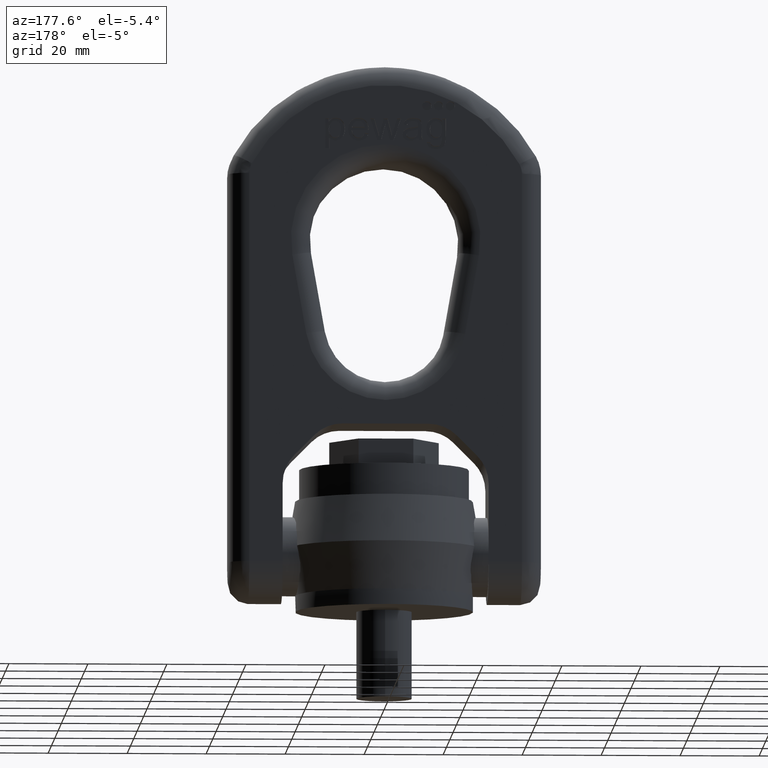
[diagram: clean part render]
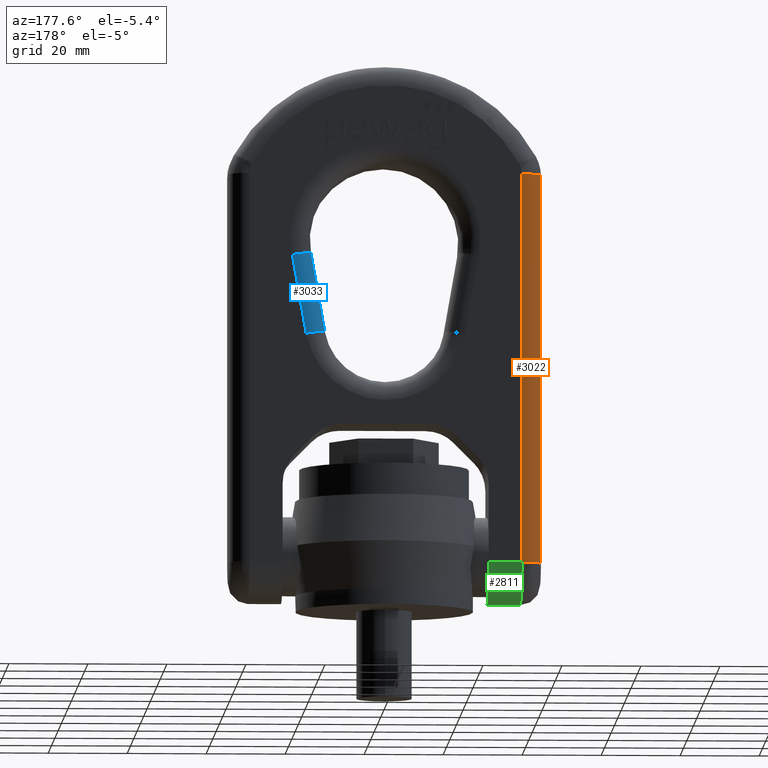
[diagram: same view with three faces highlighted in distinct colors, each labeled with its STEP entity id]
A machine part, auxiliary view with three faces highlighted in distinct colors.
Their STEP definitions:

[orange] entity #3022 — the highlighted cylindrical surface (edge-blend (fillet) strip) has radius 5 mm, axis along (-0, 0, -1).
#1823=LINE('',#7423,#2131);
#1865=LINE('',#7745,#2173);
#2131=VECTOR('',#6282,1.);
#2173=VECTOR('',#6346,1.);
#2647=FACE_OUTER_BOUND('',#3415,.T.);
#3022=ADVANCED_FACE('',(#2647),#3062,.T.);
#3062=CYLINDRICAL_SURFACE('',#6035,5.);
#3415=EDGE_LOOP('',(#4625,#4626,#4627,#4628));
#4625=ORIENTED_EDGE('',*,*,#5729,.T.);
#4626=ORIENTED_EDGE('',*,*,#5361,.F.);
#4627=ORIENTED_EDGE('',*,*,#5732,.F.);
#4628=ORIENTED_EDGE('',*,*,#5278,.F.);
#4739=VERTEX_POINT('',#7058);
#4840=VERTEX_POINT('',#7424);
#4920=VERTEX_POINT('',#7744);
#4921=VERTEX_POINT('',#7746);
#5278=EDGE_CURVE('',#4739,#4840,#1823,.T.);
#5361=EDGE_CURVE('',#4920,#4921,#1865,.T.);
#5729=EDGE_CURVE('',#4739,#4921,#5807,.T.);
#5732=EDGE_CURVE('',#4840,#4920,#5810,.T.);
#5807=CIRCLE('',#6030,5.);
#5810=CIRCLE('',#6034,5.);
#6030=AXIS2_PLACEMENT_3D('',#9715,#6868,#6869);
#6034=AXIS2_PLACEMENT_3D('',#9735,#6876,#6877);
#6035=AXIS2_PLACEMENT_3D('',#9736,#6878,#6879);
#6282=DIRECTION('',(1.87537673078574E-16,-4.39384026378438E-31,1.));
#6346=DIRECTION('',(-1.87537673078574E-16,4.39384026378438E-31,-1.));
#6868=DIRECTION('',(3.46944695195361E-16,-4.81482486096809E-31,1.));
#6869=DIRECTION('',(1.,0.,-3.46944695195361E-16));
#6876=DIRECTION('',(0.,0.,1.));
#6877=DIRECTION('',(1.,0.,0.));
#6878=DIRECTION('',(-1.87537673078574E-16,4.39384026378438E-31,-1.));
#6879=DIRECTION('',(-0.999999999999999,0.,0.));
#7058=CARTESIAN_POINT('',(-34.5,10.0000000000001,12.));
#7423=CARTESIAN_POINT('',(-34.5,10.0000000000001,110.597669259971));
#7424=CARTESIAN_POINT('',(-34.5,10.0000000000001,110.597669259971));
#7744=CARTESIAN_POINT('',(-39.5,5.00000000000008,110.597669259971));
#7745=CARTESIAN_POINT('',(-39.5,5.00000000000008,12.0000000000001));
#7746=CARTESIAN_POINT('',(-39.5,4.99999999999999,12.));
#9715=CARTESIAN_POINT('',(-34.5,4.99999999999999,12.));
#9735=CARTESIAN_POINT('',(-34.5,5.00000000000008,110.597669259971));
#9736=CARTESIAN_POINT('',(-34.5,5.00000000000008,94.295));

[blue] entity #3033 — the highlighted cylindrical surface (edge-blend (fillet) strip) has radius 5 mm, axis along (-0.1736, 0, -0.9848).
#1815=LINE('',#7395,#2123);
#1861=LINE('',#7736,#2169);
#2123=VECTOR('',#6260,1.);
#2169=VECTOR('',#6340,1.);
#2658=FACE_OUTER_BOUND('',#3426,.T.);
#3033=ADVANCED_FACE('',(#2658),#3065,.T.);
#3065=CYLINDRICAL_SURFACE('',#6052,5.);
#3426=EDGE_LOOP('',(#4669,#4670,#4671,#4672));
#4669=ORIENTED_EDGE('',*,*,#5742,.T.);
#4670=ORIENTED_EDGE('',*,*,#5357,.F.);
#4671=ORIENTED_EDGE('',*,*,#5743,.F.);
#4672=ORIENTED_EDGE('',*,*,#5263,.F.);
#4827=VERTEX_POINT('',#7396);
#4828=VERTEX_POINT('',#7397);
#4915=VERTEX_POINT('',#7731);
#4917=VERTEX_POINT('',#7737);
#5263=EDGE_CURVE('',#4827,#4828,#1815,.T.);
#5357=EDGE_CURVE('',#4915,#4917,#1861,.T.);
#5742=EDGE_CURVE('',#4827,#4917,#5820,.T.);
#5743=EDGE_CURVE('',#4828,#4915,#5821,.T.);
#5820=CIRCLE('',#6049,5.);
#5821=CIRCLE('',#6051,5.);
#6049=AXIS2_PLACEMENT_3D('',#9830,#6906,#6907);
#6051=AXIS2_PLACEMENT_3D('',#9832,#6910,#6911);
#6052=AXIS2_PLACEMENT_3D('',#9833,#6912,#6913);
#6260=DIRECTION('',(0.17364817766693,-4.0684217855581E-16,0.984807753012208));
#6340=DIRECTION('',(-0.17364817766693,4.0684217855581E-16,-0.984807753012208));
#6906=DIRECTION('',(0.17364817766693,-3.61477884431297E-16,0.984807753012208));
#6907=DIRECTION('',(0.984807753012208,0.,-0.17364817766693));
#6910=DIRECTION('',(0.17364817766693,-3.61477884431297E-16,0.984807753012208));
#6911=DIRECTION('',(0.984807753012208,0.,-0.17364817766693));
#6912=DIRECTION('',(-0.17364817766693,4.0684217855581E-16,-0.984807753012208));
#6913=DIRECTION('',(-0.984807753012208,0.,0.17364817766693));
#7395=CARTESIAN_POINT('',(23.635386072293,9.99999999999994,89.8324437359937));
#7396=CARTESIAN_POINT('',(20.117306799399,9.99999999999995,69.8804247156558));
#7397=CARTESIAN_POINT('',(23.635386072293,9.99999999999994,89.8324437359937));
#7731=CARTESIAN_POINT('',(18.711347307232,4.99999999999994,90.7006846243283));
#7736=CARTESIAN_POINT('',(15.1932680343379,4.99999999999995,70.7486656039905));
#7737=CARTESIAN_POINT('',(15.1932680343379,4.99999999999998,70.7486656039905));
#9830=CARTESIAN_POINT('',(20.117306799399,4.99999999999995,69.8804247156558));
#9832=CARTESIAN_POINT('',(23.635386072293,4.99999999999994,89.8324437359937));
#9833=CARTESIAN_POINT('',(23.6858340434335,4.99999999999994,90.1185483975596));

[green] entity #2811 — the highlighted cylindrical surface (partial cylindrical patch) has radius 10 mm, axis along (-1, 0, 0).
#1770=LINE('',#7054,#2078);
#1771=LINE('',#7059,#2079);
#2078=VECTOR('',#6179,1.);
#2079=VECTOR('',#6182,1.);
#2453=FACE_OUTER_BOUND('',#3171,.T.);
#2811=ADVANCED_FACE('',(#2453),#3043,.T.);
#3043=CYLINDRICAL_SURFACE('',#5866,9.99999999999995);
#3171=EDGE_LOOP('',(#3529,#3530,#3531,#3532));
#3529=ORIENTED_EDGE('',*,*,#5169,.F.);
#3530=ORIENTED_EDGE('',*,*,#5170,.T.);
#3531=ORIENTED_EDGE('',*,*,#5171,.F.);
#3532=ORIENTED_EDGE('',*,*,#5172,.T.);
#4737=VERTEX_POINT('',#7055);
#4738=VERTEX_POINT('',#7056);
#4739=VERTEX_POINT('',#7058);
#4740=VERTEX_POINT('',#7060);
#5169=EDGE_CURVE('',#4737,#4738,#1770,.T.);
#5170=EDGE_CURVE('',#4737,#4739,#5760,.T.);
#5171=EDGE_CURVE('',#4740,#4739,#1771,.T.);
#5172=EDGE_CURVE('',#4740,#4738,#5761,.T.);
#5760=CIRCLE('',#5864,9.99999999999995);
#5761=CIRCLE('',#5865,9.99999999999995);
#5864=AXIS2_PLACEMENT_3D('',#7057,#6180,#6181);
#5865=AXIS2_PLACEMENT_3D('',#7061,#6183,#6184);
#5866=AXIS2_PLACEMENT_3D('',#7062,#6185,#6186);
#6179=DIRECTION('',(1.,0.,-1.14184330064296E-15));
#6180=DIRECTION('',(1.,0.,-1.87537673078574E-16));
#6181=DIRECTION('',(0.,0.,-1.));
#6182=DIRECTION('',(-1.,2.34291072916505E-15,1.14184330064296E-15));
#6183=DIRECTION('',(-1.,0.,3.85494105772624E-16));
#6184=DIRECTION('',(-3.46944695195363E-16,0.,-1.));
#6185=DIRECTION('',(-1.,1.17478108816151E-15,1.14184330064296E-15));
#6186=DIRECTION('',(-1.38777878078145E-15,-1.,0.));
#7054=CARTESIAN_POINT('',(39.5,-10.,12.));
#7055=CARTESIAN_POINT('',(-34.5,-10.,12.));
#7056=CARTESIAN_POINT('',(-26.07,-9.99999999999992,12.));
#7057=CARTESIAN_POINT('',(-34.5,4.00962666725779E-14,12.));
#7058=CARTESIAN_POINT('',(-34.5,10.0000000000001,12.));
#7059=CARTESIAN_POINT('',(39.5,9.99999999999991,12.));
#7060=CARTESIAN_POINT('',(-26.07,10.0000000000001,12.));
#7061=CARTESIAN_POINT('',(-26.07,3.01928620993763E-14,12.));
#7062=CARTESIAN_POINT('',(39.5,-4.68375338513738E-14,12.));